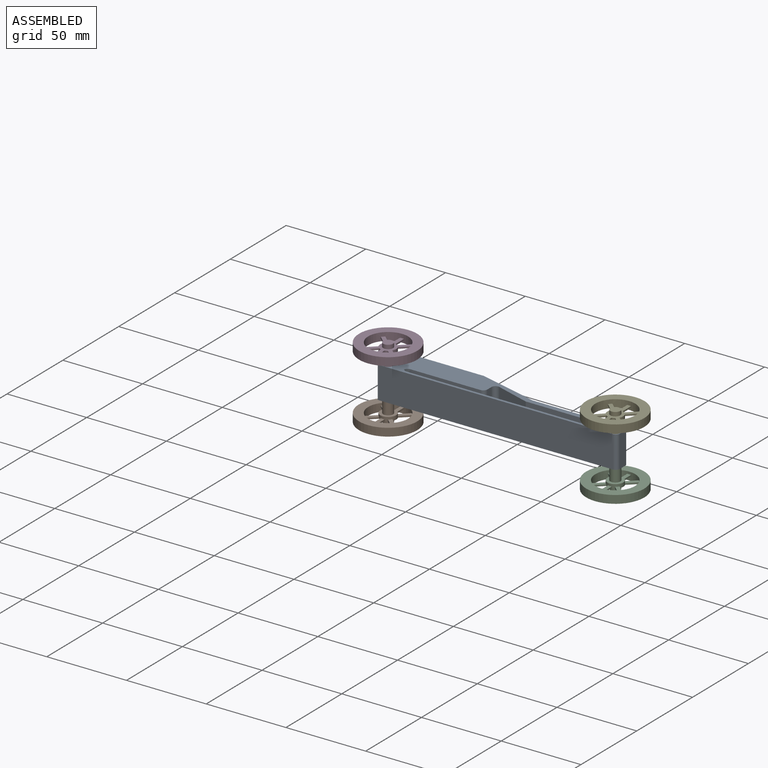
[diagram: assembled view]
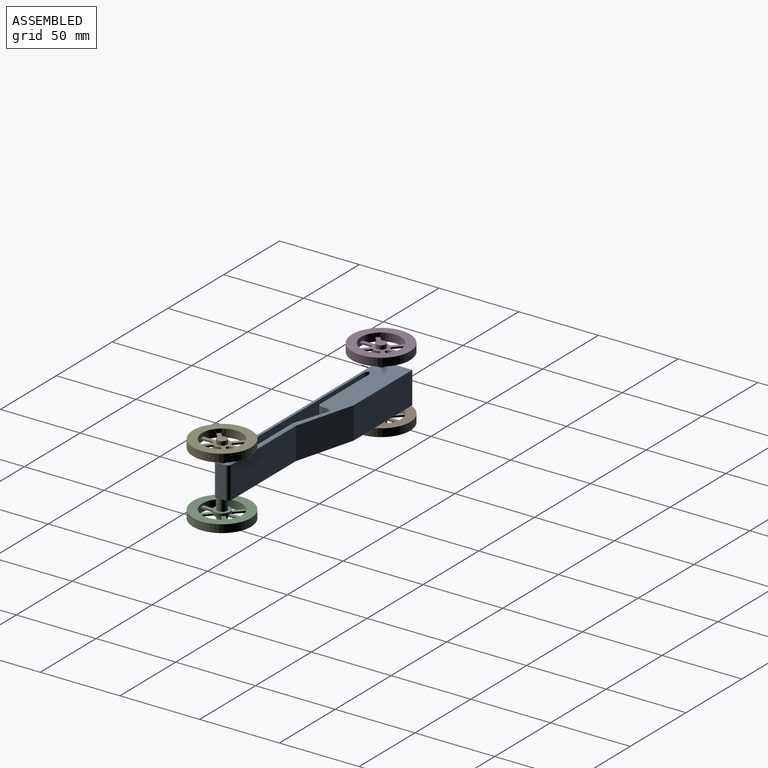
[diagram: assembled view, second angle]
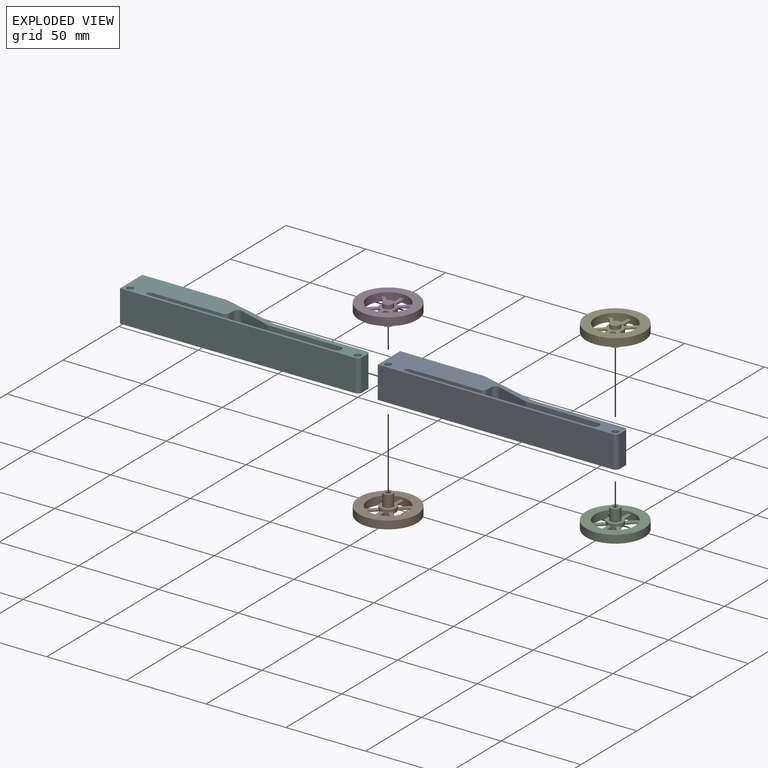
[diagram: exploded view]
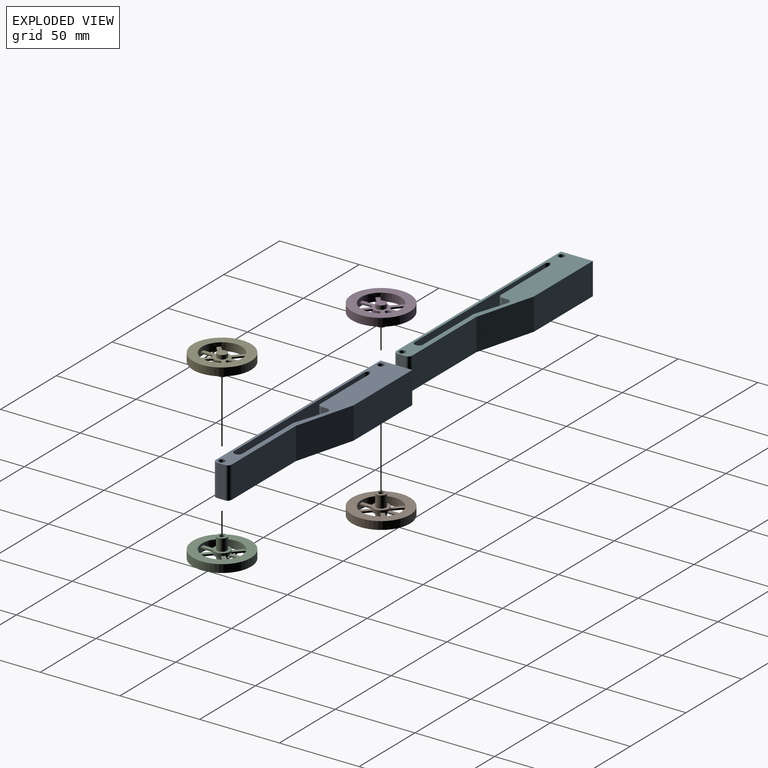
[diagram: exploded view, second angle]
ASSEMBLY  parts=6 mates=4
PART A: 26 faces, bbox 20x150x20 mm
  f0: plane 150x20mm, normal (0,0,1), area 1549.1mm2, adj f2,f3,f4,f5,f6,f7,f8,f9
  f1: plane 150x20mm, normal (0,0,-1), area 1549.1mm2, adj f2,f3,f4,f5,f6,f7,f8,f9
  f2: plane 20x5mm, normal (0,-1,0), area 100mm2, adj f0,f1,f6,f7
  f3: plane 20x20mm, normal (0,1,0), area 321.5mm2, adj f0,f1,f5,f9,f11
  f4: plane 57.5x20mm, normal (1,0,0), area 1150mm2, adj f0,f1,f7,f10
  f5: plane 147.5x20mm, normal (-1,0,0), area 2950mm2, adj f0,f1,f3,f6
  f6: cylinder r=2.5mm len=20mm, axis (0,0,-1), area 78.5mm2, adj f0,f1,f2,f5
  f7: cylinder r=2.5mm len=20mm, axis (0,0,1), area 78.5mm2, adj f0,f1,f2,f4
  f8: cylinder r=2mm len=20mm, axis (0,0,-1), area 251.3mm2, adj f0,f1
  f9: plane 52.68x20mm, normal (1,0,0), area 1053.6mm2, adj f0,f1,f3,f10
  f10: plane 37.32x20mm, normal (0.97,-0.26,0), area 772.7mm2, adj f0,f1,f4,f9
  f11: cylinder r=5mm len=60mm, axis (0,1,0), area 1885mm2, adj f3,f12
  f12: plane 10x10mm, normal (0,1,0), area 78.5mm2, adj f11
  f13: cylinder r=2mm len=20mm, axis (0,0,-1), area 251.3mm2, adj f0,f1
  f14: plane 20x3.73mm, normal (0,-1,0), area 74.7mm2, adj f0,f1,f20,f25
  f15: plane 44.14x20mm, normal (-1,0,0), area 882.8mm2, adj f0,f1,f20,f22
  f16: plane 116.6x20mm, normal (1,0,0), area 2331.9mm2, adj f0,f1,f21,f23
  f17: plane 20x0.28mm, normal (0,1,0), area 5.7mm2, adj f0,f1,f23,f24
  f18: plane 45.45x20mm, normal (-1,0,0), area 909mm2, adj f0,f1,f19,f24
  f19: plane 21.25x20mm, normal (-0.95,0.3,0), area 445.7mm2, adj f0,f1,f18,f25
  f20: cylinder r=2.5mm len=20mm, axis (0,0,1), area 78.5mm2, adj f0,f1,f14,f15
  f21: cylinder r=2.5mm len=20mm, axis (0,0,-1), area 61.9mm2, adj f0,f1,f16,f22
  f22: cylinder r=2.5mm len=20mm, axis (0,0,1), area 61.9mm2, adj f0,f1,f15,f21
  f23: cylinder r=2.5mm len=20mm, axis (0,0,-1), area 78.5mm2, adj f0,f1,f16,f17
  f24: cylinder r=2.5mm len=20mm, axis (0,0,-1), area 78.5mm2, adj f0,f1,f17,f18
  f25: cylinder r=2.5mm len=20mm, axis (0,0,1), area 93.8mm2, adj f0,f1,f14,f19
PART B: 31 faces, bbox 36.4x12.5x36.4 mm
  f0: cylinder r=3.1mm len=7.5mm, axis (0,-1,0), area 146.1mm2, adj f2,f5
  f1: cylinder r=1.5mm len=10mm, axis (0,-1,0), area 94.2mm2, adj f2,f3
  f2: plane 6.2x6.2mm, normal (0,-1,0), area 23.1mm2, adj f0,f1
  f3: plane 3x3mm, normal (0,-1,0), area 7.1mm2, adj f1
  f4: cylinder r=5mm len=10mm, axis (0,1,0), area 64mm2, adj f5,f6,f9,f10,f11,f12,f13,f14
  f5: plane 10x10mm, normal (0,-1,0), area 48.3mm2, adj f0,f4
  f6: plane 25.02x19.87mm, normal (0,1,0), area 156.8mm2, adj f4,f8,f9,f10,f12,f13,f15,f16
  f7: plane 6.18x6.18mm, normal (0,1,0), area 30mm2, adj f8
  f8: cylinder r=3.09mm len=6.18mm, axis (0,-1,0), area 48.5mm2, adj f6,f7
  f9: plane 5.55x5.17mm, normal (0.68,0,-0.73), area 7.6mm2, adj f4,f6,f11,f27
  f10: plane 5.55x5.17mm, normal (-0.68,0,0.73), area 7.6mm2, adj f4,f6,f11,f27
  f11: plane 7.19x6.93mm, normal (0,-1,0), area 18.1mm2, adj f4,f9,f10,f27
  f12: plane 7.59x1mm, normal (1,0,0), area 7.6mm2, adj f4,f6,f14,f27
  f13: plane 7.59x1mm, normal (-1,0,0), area 7.6mm2, adj f4,f6,f14,f27
  f14: plane 7.65x2.4mm, normal (0,-1,0), area 18.1mm2, adj f4,f12,f13,f27
  f15: plane 5.55x5.17mm, normal (-0.68,0,-0.73), area 7.6mm2, adj f4,f6,f17,f27
  f16: plane 5.55x5.17mm, normal (0.68,0,0.73), area 7.6mm2, adj f4,f6,f17,f27
  f17: plane 7.19x6.93mm, normal (0,-1,0), area 18.1mm2, adj f4,f15,f16,f27
  f18: plane 5.55x5.17mm, normal (-0.68,0,0.73), area 7.6mm2, adj f4,f6,f20,f27
  f19: plane 5.55x5.17mm, normal (0.68,0,-0.73), area 7.6mm2, adj f4,f6,f20,f27
  f20: plane 7.19x6.93mm, normal (0,-1,0), area 18.1mm2, adj f4,f18,f19,f27
  f21: plane 7.59x1mm, normal (-1,0,0), area 7.6mm2, adj f4,f6,f23,f27
  f22: plane 7.59x1mm, normal (1,0,0), area 7.6mm2, adj f4,f6,f23,f27
  f23: plane 7.65x2.4mm, normal (0,-1,0), area 18.1mm2, adj f4,f21,f22,f27
  f24: plane 5.55x5.17mm, normal (-0.68,0,-0.73), area 7.6mm2, adj f4,f6,f26,f27
  f25: plane 5.55x5.17mm, normal (0.68,0,0.73), area 7.6mm2, adj f4,f6,f26,f27
  f26: plane 7.19x6.93mm, normal (0,-1,0), area 18.1mm2, adj f4,f24,f25,f27
  f27: cylinder r=12.5mm len=25mm, axis (0,-1,0), area 378.3mm2, adj f6,f9,f10,f11,f12,f13,f14,f15
  f28: cylinder r=18.2mm len=36.4mm, axis (0,-1,0), area 571.8mm2, adj f29,f30
  f29: plane 36.4x36.4mm, normal (0,1,0), area 549.7mm2, adj f27,f28
  f30: plane 36.4x36.4mm, normal (0,-1,0), area 549.7mm2, adj f27,f28
PART C: same geometry as B
PART D: 31 faces, bbox 36.4x12.5x36.4 mm
  f0: cylinder r=3.1mm len=7.5mm, axis (0,1,0), area 146.1mm2, adj f2,f5
  f1: cylinder r=1.5mm len=10mm, axis (0,1,0), area 94.2mm2, adj f2,f3
  f2: plane 6.2x6.2mm, normal (0,1,0), area 23.1mm2, adj f0,f1
  f3: plane 3x3mm, normal (0,1,0), area 7.1mm2, adj f1
  f4: cylinder r=5mm len=10mm, axis (0,-1,0), area 64mm2, adj f5,f6,f9,f10,f11,f12,f13,f14
  f5: plane 10x10mm, normal (0,1,0), area 48.3mm2, adj f0,f4
  f6: plane 25.02x19.87mm, normal (0,-1,0), area 156.8mm2, adj f4,f8,f9,f10,f12,f13,f15,f16
  f7: plane 6.18x6.18mm, normal (0,-1,0), area 30mm2, adj f8
  f8: cylinder r=3.09mm len=6.18mm, axis (0,1,0), area 48.5mm2, adj f6,f7
  f9: plane 5.55x5.17mm, normal (0.68,0,-0.73), area 7.6mm2, adj f4,f6,f11,f27
  f10: plane 5.55x5.17mm, normal (-0.68,0,0.73), area 7.6mm2, adj f4,f6,f11,f27
  f11: plane 7.19x6.93mm, normal (0,1,0), area 18.1mm2, adj f4,f9,f10,f27
  f12: plane 7.59x1mm, normal (1,0,0), area 7.6mm2, adj f4,f6,f14,f27
  f13: plane 7.59x1mm, normal (-1,0,0), area 7.6mm2, adj f4,f6,f14,f27
  f14: plane 7.65x2.4mm, normal (0,1,0), area 18.1mm2, adj f4,f12,f13,f27
  f15: plane 5.55x5.17mm, normal (-0.68,0,-0.73), area 7.6mm2, adj f4,f6,f17,f27
  f16: plane 5.55x5.17mm, normal (0.68,0,0.73), area 7.6mm2, adj f4,f6,f17,f27
  f17: plane 7.19x6.93mm, normal (0,1,0), area 18.1mm2, adj f4,f15,f16,f27
  f18: plane 5.55x5.17mm, normal (-0.68,0,0.73), area 7.6mm2, adj f4,f6,f20,f27
  f19: plane 5.55x5.17mm, normal (0.68,0,-0.73), area 7.6mm2, adj f4,f6,f20,f27
  f20: plane 7.19x6.93mm, normal (0,1,0), area 18.1mm2, adj f4,f18,f19,f27
  f21: plane 7.59x1mm, normal (-1,0,0), area 7.6mm2, adj f4,f6,f23,f27
  f22: plane 7.59x1mm, normal (1,0,0), area 7.6mm2, adj f4,f6,f23,f27
  f23: plane 7.65x2.4mm, normal (0,1,0), area 18.1mm2, adj f4,f21,f22,f27
  f24: plane 5.55x5.17mm, normal (-0.68,0,-0.73), area 7.6mm2, adj f4,f6,f26,f27
  f25: plane 5.55x5.17mm, normal (0.68,0,0.73), area 7.6mm2, adj f4,f6,f26,f27
  f26: plane 7.19x6.93mm, normal (0,1,0), area 18.1mm2, adj f4,f24,f25,f27
  f27: cylinder r=12.5mm len=25mm, axis (0,1,0), area 378.3mm2, adj f6,f9,f10,f11,f12,f13,f14,f15
  f28: cylinder r=18.2mm len=36.4mm, axis (0,1,0), area 571.8mm2, adj f29,f30
  f29: plane 36.4x36.4mm, normal (0,-1,0), area 549.7mm2, adj f27,f28
  f30: plane 36.4x36.4mm, normal (0,1,0), area 549.7mm2, adj f27,f28
PART E: same geometry as D
PART F: same geometry as A
PLACE A rot(axis=(0,0,1),90deg) t=(-34.58,105.01,19.11)mm
PLACE B rot(axis=(-1,0,0),90deg) t=(-102.06,37.32,64.11)mm
PLACE C rot(axis=(-1,0,0),90deg) t=(40.41,37.32,64.11)mm
PLACE D rot(axis=(-1,0,0),90deg) t=(-102.06,37.32,59.11)mm
PLACE E rot(axis=(-1,0,0),90deg) t=(40.41,37.32,59.11)mm
PLACE F rot(axis=(0,0,1),90deg) t=(-34.58,105.01,19.11)mm
MATE revolute E.f0 <-> A.f8  axis (0,0,-1) through (40.41,37.32,59.11)mm
MATE revolute D.f0 <-> A.f13  axis (0,0,-1) through (-102.06,37.32,59.11)mm
MATE revolute B.f0 <-> A.f13  axis (0,0,1) through (-102.06,37.32,39.11)mm
MATE revolute C.f0 <-> A.f8  axis (0,0,1) through (40.41,37.32,39.11)mm
